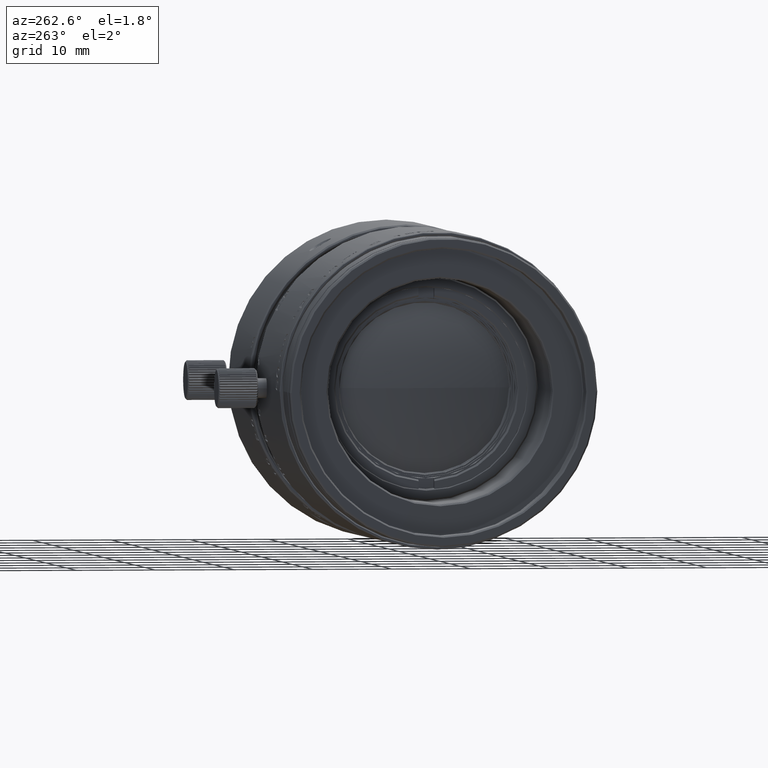
[diagram: clean part render]
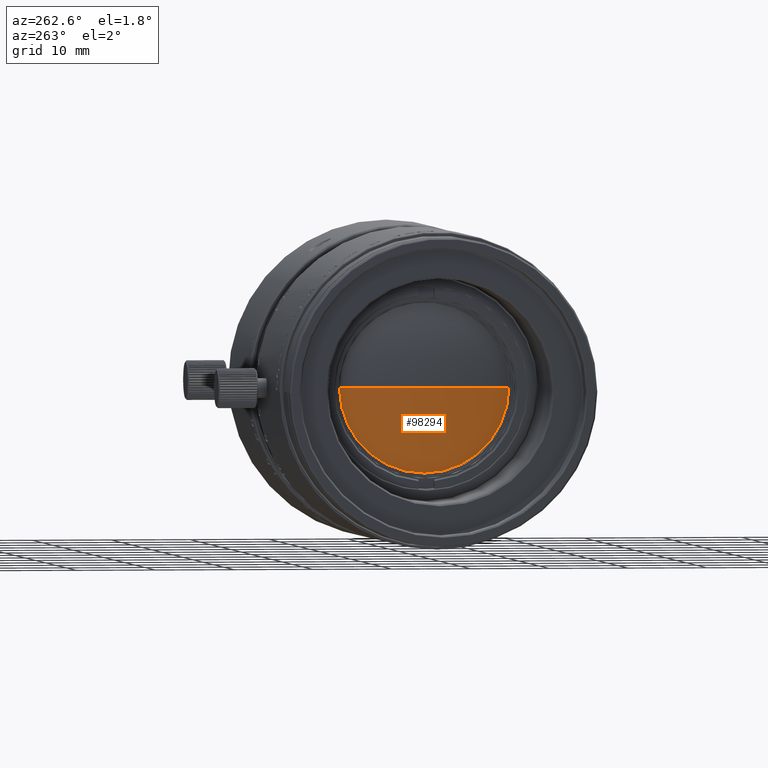
[diagram: same view with one face highlighted and labeled with its STEP entity id]
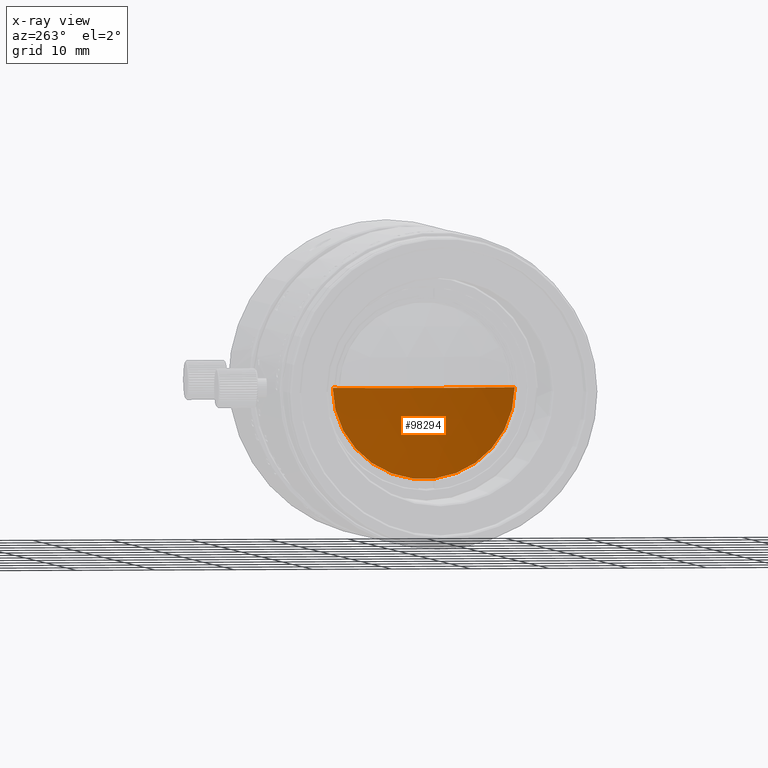
[diagram: x-ray of the same camera — body ghosted, the highlighted face saturated]
A machine part, auxiliary view. The second image highlights one B-rep face of the part: STEP entity #98294.
The next image is the same camera in x-ray: the body ghosted, the highlighted face saturated — about 0% of this face is hidden behind the body in this view.
In plain terms, the highlighted spherical surface has radius 35.22 mm.
Its self-contained STEP definition (entity closure, byte-faithful):
#2721 = CARTESIAN_POINT ( 'NONE',  ( -10.49229928935000089, 11.54999999999999893, 0.000000000000000000 ) ) ;
#9407 = DIRECTION ( 'NONE',  ( 0.000000000000000000, 0.000000000000000000, -1.000000000000000000 ) ) ;
#14569 = AXIS2_PLACEMENT_3D ( 'NONE', #92979, #42185, #60022 ) ;
#26651 = SPHERICAL_SURFACE ( 'NONE', #69659, 35.21999999999999886 ) ;
#37229 = EDGE_CURVE ( 'NONE', #89153, #72312, #43111, .T. ) ;
#38925 = AXIS2_PLACEMENT_3D ( 'NONE', #70071, #72119, #63745 ) ;
#42185 = DIRECTION ( 'NONE',  ( 1.000000000000000000, 0.000000000000000000, 0.000000000000000000 ) ) ;
#43111 = CIRCLE ( 'NONE', #14569, 11.54999999999999893 ) ;
#49552 = DIRECTION ( 'NONE',  ( 0.000000000000000000, 1.000000000000000000, 0.000000000000000000 ) ) ;
#60022 = DIRECTION ( 'NONE',  ( 0.000000000000000000, -1.000000000000000000, 0.000000000000000000 ) ) ;
#63578 = ORIENTED_EDGE ( 'NONE', *, *, #37229, .F. ) ;
#63745 = DIRECTION ( 'NONE',  ( -0.9446990144619292762, -0.3279386712095106460, 0.000000000000000000 ) ) ;
#69659 = AXIS2_PLACEMENT_3D ( 'NONE', #102568, #9407, #49552 ) ;
#70071 = CARTESIAN_POINT ( 'NONE',  ( 22.78000000000000114, 0.000000000000000000, 0.000000000000000000 ) ) ;
#70446 = ORIENTED_EDGE ( 'NONE', *, *, #79625, .T. ) ;
#72119 = DIRECTION ( 'NONE',  ( 0.000000000000000000, 0.000000000000000000, -1.000000000000000000 ) ) ;
#72312 = VERTEX_POINT ( 'NONE', #2721 ) ;
#79625 = EDGE_CURVE ( 'NONE', #89153, #72312, #94251, .T. ) ;
#80059 = EDGE_LOOP ( 'NONE', ( #63578, #70446 ) ) ;
#89153 = VERTEX_POINT ( 'NONE', #105543 ) ;
#92979 = CARTESIAN_POINT ( 'NONE',  ( -10.49229928935000089, 0.000000000000000000, 0.000000000000000000 ) ) ;
#94251 = CIRCLE ( 'NONE', #38925, 35.21999999999999176 ) ;
#98294 = ADVANCED_FACE ( 'NONE', ( #109301 ), #26651, .T. ) ;
#102568 = CARTESIAN_POINT ( 'NONE',  ( 22.78000000000000114, 0.000000000000000000, 0.000000000000000000 ) ) ;
#105543 = CARTESIAN_POINT ( 'NONE',  ( -10.49229928935000089, -11.54999999999999893, 0.000000000000000000 ) ) ;
#109301 = FACE_OUTER_BOUND ( 'NONE', #80059, .T. ) ;